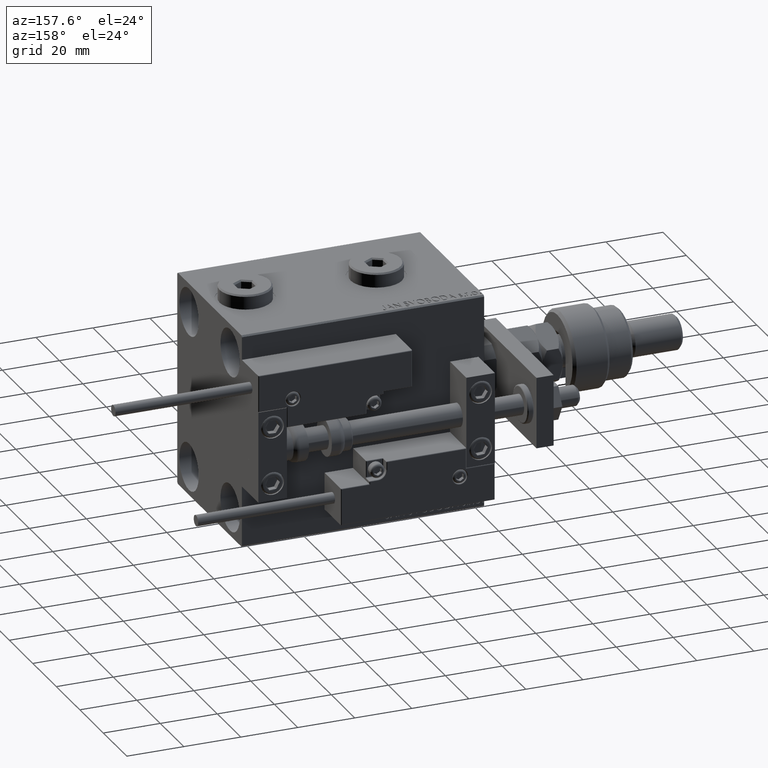
[diagram: clean part render]
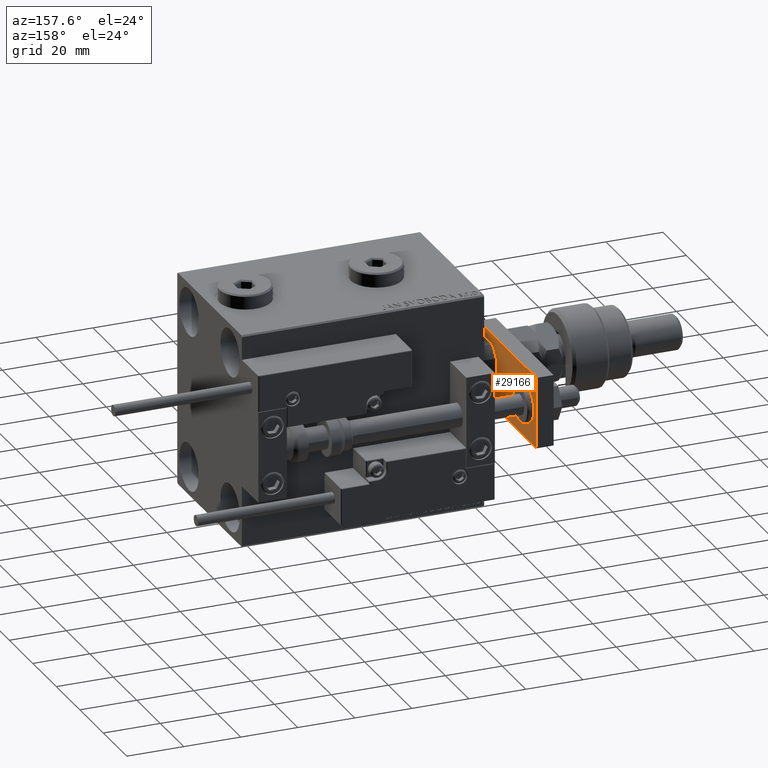
[diagram: same view with one face highlighted and labeled with its STEP entity id]
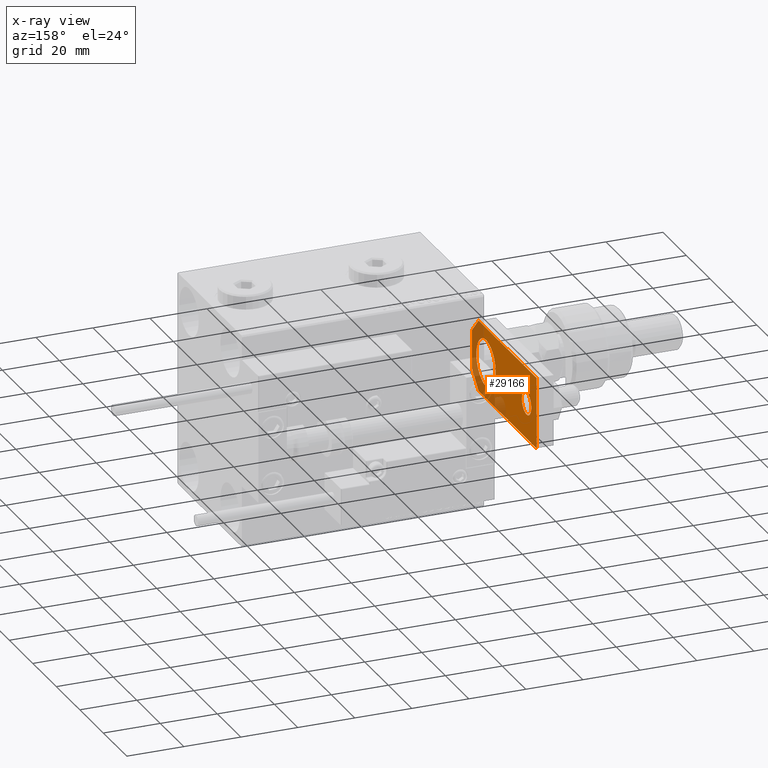
[diagram: x-ray of the same camera — body ghosted, the highlighted face saturated]
A machine part, auxiliary view. The second image highlights one B-rep face of the part: STEP entity #29166.
The next image is the same camera in x-ray: the body ghosted, the highlighted face saturated — about 22% of this face is hidden behind the body in this view.
In plain terms, the highlighted planar face has unit normal (-1, 0, 0).
Its self-contained STEP definition (entity closure, byte-faithful):
#857 = EDGE_CURVE ( 'NONE', #10709, #50770, #53277, .T. ) ;
#1056 = CIRCLE ( 'NONE', #45849, 4.000000000000000888 ) ;
#1291 = EDGE_CURVE ( 'NONE', #29594, #48264, #3118, .T. ) ;
#1443 = CARTESIAN_POINT ( 'NONE',  ( 12.50000000000000000, 55.00000000000000000, 0.000000000000000000 ) ) ;
#1667 = CIRCLE ( 'NONE', #41179, 8.250000000000000000 ) ;
#2039 = DIRECTION ( 'NONE',  ( 1.000000000000000000, 0.000000000000000000, 0.000000000000000000 ) ) ;
#2198 = CARTESIAN_POINT ( 'NONE',  ( 8.250000000000000000, 11.99999999999999822, 0.000000000000000000 ) ) ;
#3118 = LINE ( 'NONE', #22884, #26897 ) ;
#3350 = AXIS2_PLACEMENT_3D ( 'NONE', #5422, #12583, #38942 ) ;
#4118 = CARTESIAN_POINT ( 'NONE',  ( -4.000000000000000888, 46.50000000000000000, 0.000000000000000000 ) ) ;
#4687 = DIRECTION ( 'NONE',  ( -0.7071067811865467956, 0.7071067811865483499, -0.000000000000000000 ) ) ;
#4712 = DIRECTION ( 'NONE',  ( -9.462128050782584375E-17, -1.000000000000000000, 0.000000000000000000 ) ) ;
#5038 = CARTESIAN_POINT ( 'NONE',  ( -12.50000000000000355, 5.660000000000005471, 0.000000000000000000 ) ) ;
#5422 = CARTESIAN_POINT ( 'NONE',  ( 0.000000000000000000, 0.000000000000000000, 0.000000000000000000 ) ) ;
#6107 = ORIENTED_EDGE ( 'NONE', *, *, #16009, .T. ) ;
#6272 = DIRECTION ( 'NONE',  ( 0.000000000000000000, 0.000000000000000000, 1.000000000000000000 ) ) ;
#6589 = CARTESIAN_POINT ( 'NONE',  ( -12.49999999999999822, 55.00000000000000000, 0.000000000000000000 ) ) ;
#6802 = ORIENTED_EDGE ( 'NONE', *, *, #30451, .F. ) ;
#7343 = VECTOR ( 'NONE', #37226, 1000.000000000000114 ) ;
#7703 = CARTESIAN_POINT ( 'NONE',  ( 6.839999999999998970, 4.814824860968089633E-32, 0.000000000000000000 ) ) ;
#8407 = EDGE_CURVE ( 'NONE', #40392, #52694, #45547, .T. ) ;
#8550 = CARTESIAN_POINT ( 'NONE',  ( -8.250000000000000000, 11.99999999999999645, 0.000000000000000000 ) ) ;
#9521 = VECTOR ( 'NONE', #4712, 1000.000000000000000 ) ;
#9801 = EDGE_CURVE ( 'NONE', #52694, #40392, #1667, .T. ) ;
#9914 = CARTESIAN_POINT ( 'NONE',  ( 12.50000000000000355, 4.814824860968089633E-32, 0.000000000000000000 ) ) ;
#10104 = ORIENTED_EDGE ( 'NONE', *, *, #43981, .T. ) ;
#10501 = ORIENTED_EDGE ( 'NONE', *, *, #1291, .F. ) ;
#10709 = VERTEX_POINT ( 'NONE', #4118 ) ;
#12583 = DIRECTION ( 'NONE',  ( -0.000000000000000000, 0.000000000000000000, 1.000000000000000000 ) ) ;
#13342 = VECTOR ( 'NONE', #4687, 1000.000000000000000 ) ;
#13400 = FACE_BOUND ( 'NONE', #17954, .T. ) ;
#13546 = LINE ( 'NONE', #1443, #30113 ) ;
#13622 = CARTESIAN_POINT ( 'NONE',  ( -1.432611055310774642E-16, 46.50000000000000000, 0.000000000000000000 ) ) ;
#14849 = CARTESIAN_POINT ( 'NONE',  ( 12.50000000000000000, 55.00000000000000000, 0.000000000000000000 ) ) ;
#16009 = EDGE_CURVE ( 'NONE', #29594, #35142, #49786, .T. ) ;
#16171 = DIRECTION ( 'NONE',  ( 1.000000000000000000, 0.000000000000000000, 0.000000000000000000 ) ) ;
#17612 = CARTESIAN_POINT ( 'NONE',  ( -1.432611055310774642E-16, 46.50000000000000000, 0.000000000000000000 ) ) ;
#17934 = ORIENTED_EDGE ( 'NONE', *, *, #18274, .F. ) ;
#17954 = EDGE_LOOP ( 'NONE', ( #23842, #40487 ) ) ;
#18274 = EDGE_CURVE ( 'NONE', #21657, #41192, #13546, .T. ) ;
#18361 = EDGE_LOOP ( 'NONE', ( #10501, #6107, #6802, #17934, #22895, #10104 ) ) ;
#20915 = DIRECTION ( 'NONE',  ( 0.000000000000000000, 0.000000000000000000, 1.000000000000000000 ) ) ;
#21657 = VERTEX_POINT ( 'NONE', #14849 ) ;
#21675 = VECTOR ( 'NONE', #43452, 1000.000000000000000 ) ;
#22574 = DIRECTION ( 'NONE',  ( -1.000000000000000000, 0.000000000000000000, 0.000000000000000000 ) ) ;
#22884 = CARTESIAN_POINT ( 'NONE',  ( -12.50000000000000355, 4.814824860968089633E-32, 0.000000000000000000 ) ) ;
#22895 = ORIENTED_EDGE ( 'NONE', *, *, #24219, .F. ) ;
#23787 = ORIENTED_EDGE ( 'NONE', *, *, #37027, .T. ) ;
#23842 = ORIENTED_EDGE ( 'NONE', *, *, #9801, .T. ) ;
#24219 = EDGE_CURVE ( 'NONE', #41359, #21657, #47300, .T. ) ;
#25021 = DIRECTION ( 'NONE',  ( 1.000000000000000000, 0.000000000000000000, 0.000000000000000000 ) ) ;
#26190 = AXIS2_PLACEMENT_3D ( 'NONE', #49992, #53289, #16171 ) ;
#26236 = DIRECTION ( 'NONE',  ( 0.000000000000000000, 0.000000000000000000, 1.000000000000000000 ) ) ;
#26684 = CARTESIAN_POINT ( 'NONE',  ( 4.000000000000000888, 46.50000000000000000, 0.000000000000000000 ) ) ;
#26897 = VECTOR ( 'NONE', #2039, 1000.000000000000000 ) ;
#29166 = ADVANCED_FACE ( 'NONE', ( #38393, #38133, #13400 ), #43079, .F. ) ;
#29594 = VERTEX_POINT ( 'NONE', #38748 ) ;
#30113 = VECTOR ( 'NONE', #22574, 1000.000000000000000 ) ;
#30351 = DIRECTION ( 'NONE',  ( 1.000000000000000000, 0.000000000000000000, 0.000000000000000000 ) ) ;
#30451 = EDGE_CURVE ( 'NONE', #41192, #35142, #33804, .T. ) ;
#32258 = CARTESIAN_POINT ( 'NONE',  ( 12.50000000000000355, 5.659999999999991260, 0.000000000000000000 ) ) ;
#33804 = LINE ( 'NONE', #46496, #9521 ) ;
#35142 = VERTEX_POINT ( 'NONE', #5038 ) ;
#35484 = ORIENTED_EDGE ( 'NONE', *, *, #857, .T. ) ;
#37027 = EDGE_CURVE ( 'NONE', #50770, #10709, #1056, .T. ) ;
#37226 = DIRECTION ( 'NONE',  ( -0.7071067811865483499, -0.7071067811865465735, -0.000000000000000000 ) ) ;
#38133 = FACE_BOUND ( 'NONE', #53563, .T. ) ;
#38393 = FACE_OUTER_BOUND ( 'NONE', #18361, .T. ) ;
#38748 = CARTESIAN_POINT ( 'NONE',  ( -6.840000000000012292, 4.814824860968089633E-32, 0.000000000000000000 ) ) ;
#38942 = DIRECTION ( 'NONE',  ( 1.000000000000000000, 0.000000000000000000, 0.000000000000000000 ) ) ;
#40392 = VERTEX_POINT ( 'NONE', #2198 ) ;
#40487 = ORIENTED_EDGE ( 'NONE', *, *, #8407, .T. ) ;
#41179 = AXIS2_PLACEMENT_3D ( 'NONE', #52996, #6272, #43929 ) ;
#41192 = VERTEX_POINT ( 'NONE', #6589 ) ;
#41359 = VERTEX_POINT ( 'NONE', #42815 ) ;
#41626 = LINE ( 'NONE', #32258, #7343 ) ;
#42815 = CARTESIAN_POINT ( 'NONE',  ( 12.50000000000000355, 5.659999999999991260, 0.000000000000000000 ) ) ;
#43079 = PLANE ( 'NONE',  #3350 ) ;
#43452 = DIRECTION ( 'NONE',  ( -6.308085367188389994E-17, 1.000000000000000000, 0.000000000000000000 ) ) ;
#43929 = DIRECTION ( 'NONE',  ( 1.000000000000000000, 0.000000000000000000, 0.000000000000000000 ) ) ;
#43981 = EDGE_CURVE ( 'NONE', #41359, #48264, #41626, .T. ) ;
#45547 = CIRCLE ( 'NONE', #26190, 8.250000000000000000 ) ;
#45849 = AXIS2_PLACEMENT_3D ( 'NONE', #17612, #20915, #25021 ) ;
#46496 = CARTESIAN_POINT ( 'NONE',  ( -12.49999999999999822, 55.00000000000000000, 0.000000000000000000 ) ) ;
#47300 = LINE ( 'NONE', #9914, #21675 ) ;
#48264 = VERTEX_POINT ( 'NONE', #7703 ) ;
#48890 = AXIS2_PLACEMENT_3D ( 'NONE', #13622, #26236, #30351 ) ;
#49786 = LINE ( 'NONE', #50060, #13342 ) ;
#49992 = CARTESIAN_POINT ( 'NONE',  ( -9.629649721936179265E-32, 11.99999999999999645, 0.000000000000000000 ) ) ;
#50060 = CARTESIAN_POINT ( 'NONE',  ( -6.840000000000012292, 4.814824860968089633E-32, 0.000000000000000000 ) ) ;
#50770 = VERTEX_POINT ( 'NONE', #26684 ) ;
#52694 = VERTEX_POINT ( 'NONE', #8550 ) ;
#52996 = CARTESIAN_POINT ( 'NONE',  ( -9.629649721936179265E-32, 11.99999999999999645, 0.000000000000000000 ) ) ;
#53277 = CIRCLE ( 'NONE', #48890, 4.000000000000000888 ) ;
#53289 = DIRECTION ( 'NONE',  ( 0.000000000000000000, 0.000000000000000000, 1.000000000000000000 ) ) ;
#53563 = EDGE_LOOP ( 'NONE', ( #35484, #23787 ) ) ;